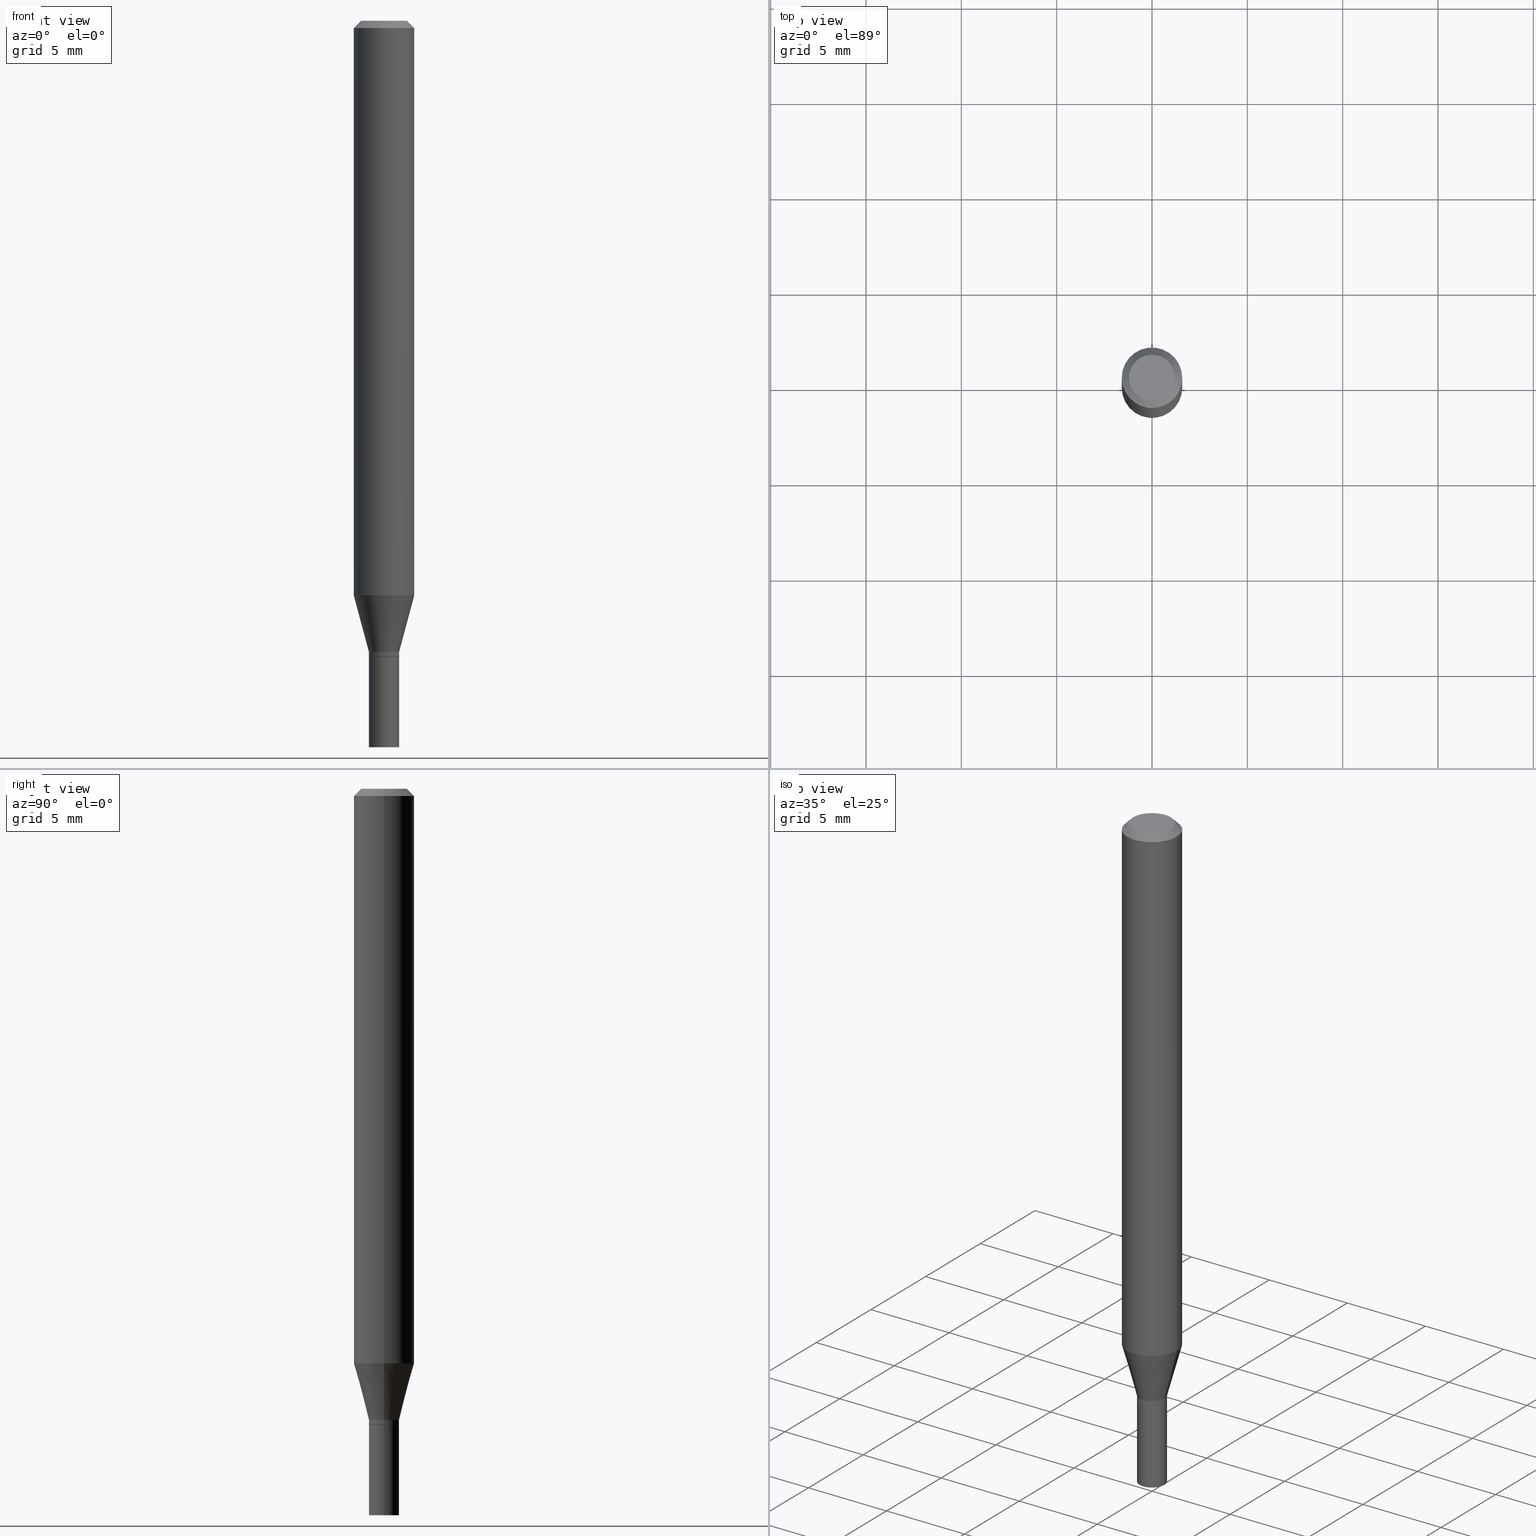
[diagram: canonical four-view strip — front | top / right | iso, engineering-drawing reading convention]
A machine part, canonical four-view strip (front | top / right | iso — engineering-drawing reading convention). The complete STEP part file that produces these views, byte-faithful:
ISO-10303-21;
HEADER;
FILE_DESCRIPTION (( 'STEP AP203' ),
    '1' );
FILE_NAME ('35473.STEP',
    '2024-03-13T16:41:10',
    ( '' ),
    ( '' ),
    'SwSTEP 2.0',
    'SolidWorks 2023',
    '' );
FILE_SCHEMA (( 'CONFIG_CONTROL_DESIGN' ));
ENDSEC;

DATA;
#1 = VERTEX_POINT ( 'NONE', #331 ) ;
#2 = DIRECTION ( 'NONE',  ( -2.445468806185136597E-29, 3.491481338843145583E-15, 1.000000000000000000 ) ) ;
#3 = DIRECTION ( 'NONE',  ( 1.000000000000000000, -6.982962677686261189E-15, 0.000000000000000000 ) ) ;
#4 = AXIS2_PLACEMENT_3D ( 'NONE', #119, #405, #188 ) ;
#5 = AXIS2_PLACEMENT_3D ( 'NONE', #245, #161, #390 ) ;
#6 = ORIENTED_EDGE ( 'NONE', *, *, #456, .T. ) ;
#7 = CALENDAR_DATE ( 2024, 13, 3 ) ;
#8 = VERTEX_POINT ( 'NONE', #114 ) ;
#9 = SHAPE_DEFINITION_REPRESENTATION ( #292, #412 ) ;
#10 = DIRECTION ( 'NONE',  ( -2.445468806185136597E-29, 3.491481338843145583E-15, 1.000000000000000000 ) ) ;
#11 = SECURITY_CLASSIFICATION_LEVEL ( 'unclassified' ) ;
#12 = AXIS2_PLACEMENT_3D ( 'NONE', #229, #10, #403 ) ;
#13 = CONICAL_SURFACE ( 'NONE', #449, 0.03075000000000000649, 0.7853981633974739252 ) ;
#14 = CARTESIAN_POINT ( 'NONE',  ( -0.03125000000000000694, -4.688723898157853868E-15, -1.500000000000000222 ) ) ;
#15 = CIRCLE ( 'NONE', #345, 0.03124999999999994102 ) ;
#16 = ORGANIZATION ( 'UNSPECIFIED', 'UNSPECIFIED', '' ) ;
#17 = ORIENTED_EDGE ( 'NONE', *, *, #110, .F. ) ;
#18 = CARTESIAN_POINT ( 'NONE',  ( 2.901239172177741338E-29, -4.142200629817580672E-15, -1.186373412263472593 ) ) ;
#19 = DIRECTION ( 'NONE',  ( -2.445468806185136597E-29, 3.491481338843145583E-15, 1.000000000000000000 ) ) ;
#20 = DESIGN_CONTEXT ( 'detailed design', #184, 'design' ) ;
#21 = CARTESIAN_POINT ( 'NONE',  ( 0.03075000000000000649, -4.799041100239904215E-15, -1.313000000000000167 ) ) ;
#22 = AXIS2_PLACEMENT_3D ( 'NONE', #38, #363, #3 ) ;
#23 = ORIENTED_EDGE ( 'NONE', *, *, #236, .T. ) ;
#24 = DIRECTION ( 'NONE',  ( -0.7071067811865656694, 7.493145998870420424E-15, 0.7071067811865294761 ) ) ;
#25 = DIRECTION ( 'NONE',  ( 1.000000000000000000, -6.982962677686261189E-15, 0.000000000000000000 ) ) ;
#26 = LINE ( 'NONE', #61, #232 ) ;
#27 = ADVANCED_FACE ( 'NONE', ( #118 ), #222, .T. ) ;
#28 = ADVANCED_FACE ( 'NONE', ( #404 ), #213, .T. ) ;
#29 = DIRECTION ( 'NONE',  ( -2.445468806185136597E-29, 3.491481338843145583E-15, 1.000000000000000000 ) ) ;
#30 = CARTESIAN_POINT ( 'NONE',  ( 3.210900542521084585E-29, -4.584314997901050598E-15, -1.313000000000000167 ) ) ;
#31 = ORIENTED_EDGE ( 'NONE', *, *, #169, .T. ) ;
#32 = CARTESIAN_POINT ( 'NONE',  ( 3.209677808117992344E-29, -4.582569257231629095E-15, -1.312500000000000222 ) ) ;
#33 = DIRECTION ( 'NONE',  ( -1.000000000000000000, 6.982962677686265922E-15, -4.876176775795935793E-29 ) ) ;
#34 = DIRECTION ( 'NONE',  ( -2.445468806185136597E-29, 3.491481338843145583E-15, 1.000000000000000000 ) ) ;
#35 = AXIS2_PLACEMENT_3D ( 'NONE', #426, #80, #196 ) ;
#36 = ORIENTED_EDGE ( 'NONE', *, *, #159, .F. ) ;
#37 = AXIS2_PLACEMENT_3D ( 'NONE', #424, #2, #106 ) ;
#38 = CARTESIAN_POINT ( 'NONE',  ( 3.668203209277704895E-29, -5.237222008264718177E-15, -1.500000000000000222 ) ) ;
#39 = ORIENTED_EDGE ( 'NONE', *, *, #361, .T. ) ;
#40 = APPROVAL_ROLE ( '' ) ;
#41 = PERSON_AND_ORGANIZATION ( #445, #16 ) ;
#42 = EDGE_CURVE ( 'NONE', #8, #105, #427, .T. ) ;
#43 = ORIENTED_EDGE ( 'NONE', *, *, #306, .T. ) ;
#44 = APPROVAL_DATE_TIME ( #228, #247 ) ;
#45 = FACE_OUTER_BOUND ( 'NONE', #172, .T. ) ;
#46 = CIRCLE ( 'NONE', #51, 0.03125000000000000694 ) ;
#47 = LOCAL_TIME ( 12, 41, 10.00000000000000000, #73 ) ;
#48 = PLANE ( 'NONE',  #56 ) ;
#49 = DIRECTION ( 'NONE',  ( -2.445468806185136597E-29, 3.491481338843145583E-15, 1.000000000000000000 ) ) ;
#50 = ORIENTED_EDGE ( 'NONE', *, *, #318, .T. ) ;
#51 = AXIS2_PLACEMENT_3D ( 'NONE', #69, #422, #209 ) ;
#52 = FACE_OUTER_BOUND ( 'NONE', #113, .T. ) ;
#53 = ADVANCED_FACE ( 'NONE', ( #233 ), #303, .T. ) ;
#54 = DIRECTION ( 'NONE',  ( -2.445468806185136877E-29, 3.491481338843145188E-15, 1.000000000000000000 ) ) ;
#55 = ORIENTED_EDGE ( 'NONE', *, *, #438, .T. ) ;
#56 = AXIS2_PLACEMENT_3D ( 'NONE', #333, #402, #189 ) ;
#57 = EDGE_CURVE ( 'NONE', #65, #1, #301, .T. ) ;
#58 = CIRCLE ( 'NONE', #89, 0.03124999999999994102 ) ;
#59 = CARTESIAN_POINT ( 'NONE',  ( 3.668203209277705088E-31, -5.237222008264718399E-17, -0.01499999999999999944 ) ) ;
#60 = DIRECTION ( 'NONE',  ( 0.000000000000000000, 0.000000000000000000, 1.000000000000000000 ) ) ;
#61 = CARTESIAN_POINT ( 'NONE',  ( 0.06250000000000000000, -4.811533449433679005E-16, -0.01499999999999999944 ) ) ;
#62 = ORIENTED_EDGE ( 'NONE', *, *, #394, .F. ) ;
#63 = PRODUCT_RELATED_PRODUCT_CATEGORY ( 'detail', '', ( #215 ) ) ;
#64 = PERSON_AND_ORGANIZATION ( #445, #16 ) ;
#65 = VERTEX_POINT ( 'NONE', #14 ) ;
#66 = EDGE_CURVE ( 'NONE', #168, #235, #440, .T. ) ;
#67 = DIRECTION ( 'NONE',  ( 1.000000000000000000, -6.982962677686266711E-15, 4.876176775795935793E-29 ) ) ;
#68 = VECTOR ( 'NONE', #273, 39.37007874015747433 ) ;
#69 = CARTESIAN_POINT ( 'NONE',  ( 3.210900542521084585E-29, -4.584314997901050598E-15, -1.313000000000000167 ) ) ;
#70 = LINE ( 'NONE', #325, #429 ) ;
#71 = PERSON_AND_ORGANIZATION ( #445, #16 ) ;
#72 = FACE_OUTER_BOUND ( 'NONE', #165, .T. ) ;
#73 = COORDINATED_UNIVERSAL_TIME_OFFSET ( 5, 0, .BEHIND. ) ;
#74 = EDGE_CURVE ( 'NONE', #147, #101, #267, .T. ) ;
#75 = AXIS2_PLACEMENT_3D ( 'NONE', #128, #88, #334 ) ;
#76 = APPROVAL_PERSON_ORGANIZATION ( #295, #379, #435 ) ;
#77 = ORIENTED_EDGE ( 'NONE', *, *, #198, .F. ) ;
#78 = DATE_AND_TIME ( #180, #152 ) ;
#79 = CC_DESIGN_PERSON_AND_ORGANIZATION_ASSIGNMENT ( #219, #182, ( #332 ) ) ;
#80 = DIRECTION ( 'NONE',  ( -2.445468806185136597E-29, 3.491481338843145583E-15, 1.000000000000000000 ) ) ;
#81 = FACE_OUTER_BOUND ( 'NONE', #253, .T. ) ;
#82 = AXIS2_PLACEMENT_3D ( 'NONE', #171, #276, #25 ) ;
#83 = DIRECTION ( 'NONE',  ( -2.445468806185136877E-29, 3.491481338843145188E-15, 1.000000000000000000 ) ) ;
#84 = DIRECTION ( 'NONE',  ( 1.000000000000000000, -6.982962677686275388E-15, 0.000000000000000000 ) ) ;
#85 = DIRECTION ( 'NONE',  ( 0.7071067811865656694, -2.468850131082446387E-15, 0.7071067811865294761 ) ) ;
#86 = ORIENTED_EDGE ( 'NONE', *, *, #328, .T. ) ;
#87 = DIRECTION ( 'NONE',  ( 1.000000000000000000, -6.982962677686267499E-15, 4.852736867747366768E-29 ) ) ;
#88 = DIRECTION ( 'NONE',  ( -2.438088387897960049E-29, 3.491481338843145188E-15, 1.000000000000000000 ) ) ;
#89 = AXIS2_PLACEMENT_3D ( 'NONE', #99, #97, #421 ) ;
#90 = FACE_OUTER_BOUND ( 'NONE', #313, .T. ) ;
#91 = ORIENTED_EDGE ( 'NONE', *, *, #361, .F. ) ;
#92 = APPLICATION_CONTEXT ( 'configuration controlled 3d designs of mechanical parts and assemblies' ) ;
#93 = DIRECTION ( 'NONE',  ( 1.000000000000000000, -6.982962677686261189E-15, 0.000000000000000000 ) ) ;
#94 = ORIENTED_EDGE ( 'NONE', *, *, #367, .T. ) ;
#95 = AXIS2_PLACEMENT_3D ( 'NONE', #342, #197, #340 ) ;
#96 = CIRCLE ( 'NONE', #22, 0.03125000000000000694 ) ;
#97 = DIRECTION ( 'NONE',  ( -2.445468806185136597E-29, 3.491481338843145583E-15, 1.000000000000000000 ) ) ;
#98 = ORIENTED_EDGE ( 'NONE', *, *, #283, .F. ) ;
#99 = CARTESIAN_POINT ( 'NONE',  ( 3.186445854459233039E-29, -4.549400184512618949E-15, -1.302999999999999936 ) ) ;
#100 = ORIENTED_EDGE ( 'NONE', *, *, #66, .T. ) ;
#101 = VERTEX_POINT ( 'NONE', #336 ) ;
#102 = COORDINATED_UNIVERSAL_TIME_OFFSET ( 5, 0, .BEHIND. ) ;
#103 = CARTESIAN_POINT ( 'NONE',  ( -0.06250000000000000000, 4.440892098500626162E-16, -3.074334431409316114E-30 ) ) ;
#104 = AXIS2_PLACEMENT_3D ( 'NONE', #59, #29, #309 ) ;
#105 = VERTEX_POINT ( 'NONE', #238 ) ;
#106 = DIRECTION ( 'NONE',  ( 1.000000000000000000, -6.982962677686275388E-15, 0.000000000000000000 ) ) ;
#107 = APPROVAL_STATUS ( 'not_yet_approved' ) ;
#108 = DIRECTION ( 'NONE',  ( 1.000000000000000000, -6.982962677686267499E-15, 4.876176775795935793E-29 ) ) ;
#109 = EDGE_LOOP ( 'NONE', ( #164, #353, #310, #210 ) ) ;
#110 = EDGE_CURVE ( 'NONE', #432, #321, #158, .T. ) ;
#111 = EDGE_CURVE ( 'NONE', #291, #321, #15, .T. ) ;
#112 = APPROVAL_DATE_TIME ( #365, #287 ) ;
#113 = EDGE_LOOP ( 'NONE', ( #411, #224 ) ) ;
#114 = CARTESIAN_POINT ( 'NONE',  ( -0.04749999999999999362, 3.578768372314206562E-16, -2.410986470890853225E-16 ) ) ;
#115 = CARTESIAN_POINT ( 'NONE',  ( 0.03125000000000000694, -5.455439591942414011E-15, -1.500000000000000222 ) ) ;
#116 = ORIENTED_EDGE ( 'NONE', *, *, #372, .T. ) ;
#117 = CC_DESIGN_PERSON_AND_ORGANIZATION_ASSIGNMENT ( #348, #388, ( #215 ) ) ;
#118 = FACE_OUTER_BOUND ( 'NONE', #418, .T. ) ;
#119 = CARTESIAN_POINT ( 'NONE',  ( 0.000000000000000000, 0.000000000000000000, 0.000000000000000000 ) ) ;
#120 = CARTESIAN_POINT ( 'NONE',  ( 0.03125000000000000694, -2.182175836776959087E-16, 1.523805242436230286E-30 ) ) ;
#121 = DIRECTION ( 'NONE',  ( 1.000000000000000000, -6.982962677686262766E-15, 0.000000000000000000 ) ) ;
#122 = CLOSED_SHELL ( 'NONE', ( #126, #341, #53, #155, #124, #258, #428, #27, #420, #156, #241, #216 ) ) ;
#123 = PRODUCT_DEFINITION_FORMATION_WITH_SPECIFIED_SOURCE ( 'ANY', '', #215, .NOT_KNOWN. ) ;
#124 = ADVANCED_FACE ( 'NONE', ( #199 ), #335, .T. ) ;
#125 = APPLICATION_PROTOCOL_DEFINITION ( 'international standard', 'config_control_design', 1994, #92 ) ;
#126 = ADVANCED_FACE ( 'NONE', ( #90 ), #343, .T. ) ;
#127 = CARTESIAN_POINT ( 'NONE',  ( 0.06250000000000000000, -4.364351673553916694E-16, 3.047610484872459871E-30 ) ) ;
#128 = CARTESIAN_POINT ( 'NONE',  ( 3.576687321579069994E-29, -5.368277968210015545E-15, -1.500000000000000222 ) ) ;
#129 = VECTOR ( 'NONE', #178, 39.37007874015748854 ) ;
#130 = FACE_OUTER_BOUND ( 'NONE', #383, .T. ) ;
#131 = CARTESIAN_POINT ( 'NONE',  ( 0.06250000000000000000, -4.578635797172973130E-15, -1.186373412263472593 ) ) ;
#132 = DIRECTION ( 'NONE',  ( 0.7071067811865531239, -7.319954787623273400E-15, -0.7071067811865416886 ) ) ;
#133 = ORIENTED_EDGE ( 'NONE', *, *, #57, .F. ) ;
#134 = AXIS2_PLACEMENT_3D ( 'NONE', #296, #441, #84 ) ;
#135 = CIRCLE ( 'NONE', #104, 0.06250000000000000000 ) ;
#136 = PLANE ( 'NONE',  #354 ) ;
#137 = DIRECTION ( 'NONE',  ( -2.445468806185136597E-29, 3.491481338843145583E-15, 1.000000000000000000 ) ) ;
#138 = DIRECTION ( 'NONE',  ( 2.438088387897960049E-29, -3.491481338843145188E-15, -1.000000000000000000 ) ) ;
#139 = ORIENTED_EDGE ( 'NONE', *, *, #111, .T. ) ;
#140 = ORIENTED_EDGE ( 'NONE', *, *, #236, .F. ) ;
#141 = EDGE_CURVE ( 'NONE', #389, #434, #444, .T. ) ;
#142 = APPLICATION_PROTOCOL_DEFINITION ( 'international standard', 'config_control_design', 1994, #184 ) ;
#143 = DIRECTION ( 'NONE',  ( -2.445468806185136597E-29, 3.491481338843145583E-15, 1.000000000000000000 ) ) ;
#144 = ORIENTED_EDGE ( 'NONE', *, *, #456, .F. ) ;
#145 = AXIS2_PLACEMENT_3D ( 'NONE', #261, #466, #323 ) ;
#146 = CIRCLE ( 'NONE', #288, 0.06250000000000000000 ) ;
#147 = VERTEX_POINT ( 'NONE', #21 ) ;
#148 = CALENDAR_DATE ( 2024, 13, 3 ) ;
#149 = DATE_TIME_ROLE ( 'classification_date' ) ;
#150 = CYLINDRICAL_SURFACE ( 'NONE', #4, 0.06250000000000000000 ) ;
#151 = ADVANCED_FACE ( 'NONE', ( #52 ), #416, .F. ) ;
#152 = LOCAL_TIME ( 12, 41, 10.00000000000000000, #221 ) ;
#153 = ORIENTED_EDGE ( 'NONE', *, *, #306, .F. ) ;
#154 = DIRECTION ( 'NONE',  ( 2.445468806185136597E-29, -3.491481338843145583E-15, -1.000000000000000000 ) ) ;
#155 = ADVANCED_FACE ( 'NONE', ( #230 ), #150, .T. ) ;
#156 = ADVANCED_FACE ( 'NONE', ( #81 ), #48, .F. ) ;
#157 = ORIENTED_EDGE ( 'NONE', *, *, #394, .T. ) ;
#158 = LINE ( 'NONE', #378, #186 ) ;
#159 = EDGE_CURVE ( 'NONE', #147, #359, #211, .T. ) ;
#160 = CONICAL_SURFACE ( 'NONE', #272, 0.03124999999999994102, 0.2617993877991501295 ) ;
#161 = DIRECTION ( 'NONE',  ( -2.445468806185136597E-29, 3.491481338843145583E-15, 1.000000000000000000 ) ) ;
#162 = MECHANICAL_CONTEXT ( 'NONE', #92, 'mechanical' ) ;
#163 = DIRECTION ( 'NONE',  ( 1.000000000000000000, -6.982962677686275388E-15, 0.000000000000000000 ) ) ;
#164 = ORIENTED_EDGE ( 'NONE', *, *, #393, .T. ) ;
#165 = EDGE_LOOP ( 'NONE', ( #133, #50, #100, #77 ) ) ;
#166 = CARTESIAN_POINT ( 'NONE',  ( 0.03124999999999993408, -2.182175836776953910E-16, 1.523805242436226782E-30 ) ) ;
#167 = FACE_OUTER_BOUND ( 'NONE', #260, .T. ) ;
#168 = VERTEX_POINT ( 'NONE', #115 ) ;
#169 = EDGE_CURVE ( 'NONE', #436, #389, #437, .T. ) ;
#170 = CIRCLE ( 'NONE', #5, 0.03075000000000000649 ) ;
#171 = CARTESIAN_POINT ( 'NONE',  ( 3.668203209277704895E-29, -5.237222008264718177E-15, -1.500000000000000222 ) ) ;
#172 = EDGE_LOOP ( 'NONE', ( #387, #237 ) ) ;
#173 =( NAMED_UNIT ( * ) SI_UNIT ( $, .STERADIAN. ) SOLID_ANGLE_UNIT ( ) );
#174 = PERSON_AND_ORGANIZATION_ROLE ( 'classification_officer' ) ;
#175 = CC_DESIGN_PERSON_AND_ORGANIZATION_ASSIGNMENT ( #396, #330, ( #123 ) ) ;
#176 = MANIFOLD_SOLID_BREP ( 'Body-Move/Copy2[2]', #122 ) ;
#177 = LINE ( 'NONE', #103, #316 ) ;
#178 = DIRECTION ( 'NONE',  ( -0.7071067811865531239, 2.468850131082316225E-15, -0.7071067811865416886 ) ) ;
#179 = ORIENTED_EDGE ( 'NONE', *, *, #367, .F. ) ;
#180 = CALENDAR_DATE ( 2024, 13, 3 ) ;
#181 = VECTOR ( 'NONE', #24, 39.37007874015748143 ) ;
#182 = PERSON_AND_ORGANIZATION_ROLE ( 'creator' ) ;
#183 = MANIFOLD_SOLID_BREP ( 'Body-Move/Copy2[1]', #407 ) ;
#184 = APPLICATION_CONTEXT ( 'configuration controlled 3d designs of mechanical parts and assemblies' ) ;
#185 = CARTESIAN_POINT ( 'NONE',  ( 0.03125000000000000694, -4.802532581578746433E-15, -1.313000000000000167 ) ) ;
#186 = VECTOR ( 'NONE', #54, 39.37007874015748143 ) ;
#187 = AXIS2_PLACEMENT_3D ( 'NONE', #395, #415, #87 ) ;
#188 = DIRECTION ( 'NONE',  ( 1.000000000000000000, -6.982962677686266711E-15, 4.876176775795935793E-29 ) ) ;
#189 = DIRECTION ( 'NONE',  ( 1.000000000000000000, -6.982962677686265922E-15, 4.876176775795935793E-29 ) ) ;
#190 = EDGE_CURVE ( 'NONE', #432, #101, #194, .T. ) ;
#191 = ADVANCED_FACE ( 'NONE', ( #45 ), #220, .F. ) ;
#192 = CARTESIAN_POINT ( 'NONE',  ( -0.03125000000000000694, 2.220446049250313574E-16, -1.537167215704658582E-30 ) ) ;
#193 = ORIENTED_EDGE ( 'NONE', *, *, #141, .F. ) ;
#194 = CIRCLE ( 'NONE', #459, 0.03124999999999993061 ) ;
#195 = APPROVAL_PERSON_ORGANIZATION ( #41, #287, #40 ) ;
#196 = DIRECTION ( 'NONE',  ( 1.000000000000000000, -6.982962677686267499E-15, 4.852736867747366768E-29 ) ) ;
#197 = DIRECTION ( 'NONE',  ( -2.445468806185136597E-29, 3.491481338843145583E-15, 1.000000000000000000 ) ) ;
#198 = EDGE_CURVE ( 'NONE', #1, #235, #46, .T. ) ;
#199 = FACE_OUTER_BOUND ( 'NONE', #446, .T. ) ;
#200 = VECTOR ( 'NONE', #439, 39.37007874015748143 ) ;
#201 = CARTESIAN_POINT ( 'NONE',  ( -0.03075000000000000649, -4.365823106654820189E-15, -1.313000000000000167 ) ) ;
#202 = APPROVAL_PERSON_ORGANIZATION ( #64, #247, #368 ) ;
#203 = FACE_OUTER_BOUND ( 'NONE', #281, .T. ) ;
#204 = DIRECTION ( 'NONE',  ( -2.445468806185136597E-29, 3.491481338843145583E-15, 1.000000000000000000 ) ) ;
#205 = LINE ( 'NONE', #166, #250 ) ;
#206 = EDGE_CURVE ( 'NONE', #436, #430, #177, .T. ) ;
#207 = ORIENTED_EDGE ( 'NONE', *, *, #408, .F. ) ;
#208 = DIRECTION ( 'NONE',  ( -2.445468806185136877E-29, 3.491481338843145188E-15, 1.000000000000000000 ) ) ;
#209 = DIRECTION ( 'NONE',  ( 1.000000000000000000, -6.982962677686261189E-15, 0.000000000000000000 ) ) ;
#210 = ORIENTED_EDGE ( 'NONE', *, *, #66, .F. ) ;
#211 = CIRCLE ( 'NONE', #134, 0.03075000000000000649 ) ;
#212 = CARTESIAN_POINT ( 'NONE',  ( -0.03124999999999994102, -4.327355579587587641E-15, -1.302999999999999936 ) ) ;
#213 = CYLINDRICAL_SURFACE ( 'NONE', #264, 0.03125000000000000694 ) ;
#214 = EDGE_LOOP ( 'NONE', ( #17, #350, #55, #465 ) ) ;
#215 = PRODUCT ( '35473', '35473', '', ( #162 ) ) ;
#216 = ADVANCED_FACE ( 'NONE', ( #352 ), #362, .T. ) ;
#217 = COORDINATED_UNIVERSAL_TIME_OFFSET ( 5, 0, .BEHIND. ) ;
#218 = EDGE_LOOP ( 'NONE', ( #244, #450, #357, #153 ) ) ;
#219 = PERSON_AND_ORGANIZATION ( #445, #16 ) ;
#220 = PLANE ( 'NONE',  #257 ) ;
#221 = COORDINATED_UNIVERSAL_TIME_OFFSET ( 5, 0, .BEHIND. ) ;
#222 = CONICAL_SURFACE ( 'NONE', #145, 0.06250000000000000000, 0.7853981633974563836 ) ;
#223 =( GEOMETRIC_REPRESENTATION_CONTEXT ( 3 ) GLOBAL_UNCERTAINTY_ASSIGNED_CONTEXT ( ( #370 ) ) GLOBAL_UNIT_ASSIGNED_CONTEXT ( ( #355, #319, #173 ) ) REPRESENTATION_CONTEXT ( 'NONE', 'WORKASPACE' ) );
#224 = ORIENTED_EDGE ( 'NONE', *, *, #318, .F. ) ;
#225 = DATE_TIME_ROLE ( 'creation_date' ) ;
#226 = ADVANCED_FACE ( 'NONE', ( #72 ), #454, .T. ) ;
#227 = CARTESIAN_POINT ( 'NONE',  ( 3.209677808117992344E-29, -4.582569257231629095E-15, -1.312500000000000222 ) ) ;
#228 = DATE_AND_TIME ( #326, #47 ) ;
#229 = CARTESIAN_POINT ( 'NONE',  ( 0.000000000000000000, 0.000000000000000000, 0.000000000000000000 ) ) ;
#230 = FACE_OUTER_BOUND ( 'NONE', #455, .T. ) ;
#231 = AXIS2_PLACEMENT_3D ( 'NONE', #371, #49, #121 ) ;
#232 = VECTOR ( 'NONE', #132, 39.37007874015748854 ) ;
#233 = FACE_OUTER_BOUND ( 'NONE', #218, .T. ) ;
#234 = CARTESIAN_POINT ( 'NONE',  ( 0.000000000000000000, 0.000000000000000000, 0.000000000000000000 ) ) ;
#235 = VERTEX_POINT ( 'NONE', #185 ) ;
#236 = EDGE_CURVE ( 'NONE', #430, #434, #374, .T. ) ;
#237 = ORIENTED_EDGE ( 'NONE', *, *, #198, .T. ) ;
#238 = CARTESIAN_POINT ( 'NONE',  ( 0.04749999999999999362, -4.035134999187582567E-16, -2.410986470890803429E-16 ) ) ;
#239 = CARTESIAN_POINT ( 'NONE',  ( -0.06250000000000000000, -1.653197215100051457E-15, -0.01499999999999999944 ) ) ;
#240 = CC_DESIGN_SECURITY_CLASSIFICATION ( #400, ( #123 ) ) ;
#241 = ADVANCED_FACE ( 'NONE', ( #419 ), #13, .T. ) ;
#242 = DIRECTION ( 'NONE',  ( -2.445468806185136877E-29, 3.491481338843145188E-15, 1.000000000000000000 ) ) ;
#243 = CARTESIAN_POINT ( 'NONE',  ( 3.316907271900976096E-16, 0.04749999999999999362, -2.863946871395908498E-16 ) ) ;
#244 = ORIENTED_EDGE ( 'NONE', *, *, #344, .F. ) ;
#245 = CARTESIAN_POINT ( 'NONE',  ( 3.210900542521084585E-29, -4.584314997901050598E-15, -1.313000000000000167 ) ) ;
#246 = CARTESIAN_POINT ( 'NONE',  ( 2.182175836777279808E-16, 0.03124999999999542380, -1.313000000000000167 ) ) ;
#247 = APPROVAL ( #289, 'UNSPECIFIED' ) ;
#248 = VECTOR ( 'NONE', #307, 39.37007874015748143 ) ;
#249 = LINE ( 'NONE', #201, #181 ) ;
#250 = VECTOR ( 'NONE', #208, 39.37007874015748143 ) ;
#251 = PERSON_AND_ORGANIZATION_ROLE ( 'creator' ) ;
#252 = CARTESIAN_POINT ( 'NONE',  ( -0.06250000000000000000, 3.840629472727444916E-16, -0.01499999999999999944 ) ) ;
#253 = EDGE_LOOP ( 'NONE', ( #36, #62 ) ) ;
#254 = CALENDAR_DATE ( 2024, 13, 3 ) ;
#255 = ORIENTED_EDGE ( 'NONE', *, *, #206, .T. ) ;
#256 = ORIENTED_EDGE ( 'NONE', *, *, #159, .T. ) ;
#257 = AXIS2_PLACEMENT_3D ( 'NONE', #246, #138, #464 ) ;
#258 = ADVANCED_FACE ( 'NONE', ( #167 ), #160, .T. ) ;
#259 = CIRCLE ( 'NONE', #187, 0.04749999999999999362 ) ;
#260 = EDGE_LOOP ( 'NONE', ( #144, #462, #86, #284 ) ) ;
#261 = CARTESIAN_POINT ( 'NONE',  ( 3.668203209277705088E-31, -5.237222008264718399E-17, -0.01499999999999999944 ) ) ;
#262 = CC_DESIGN_DATE_AND_TIME_ASSIGNMENT ( #360, #225, ( #332 ) ) ;
#263 = DIMENSIONAL_EXPONENTS ( 1.000000000000000000, 0.000000000000000000, 0.000000000000000000, 0.000000000000000000, 0.000000000000000000, 0.000000000000000000, 0.000000000000000000 ) ;
#264 = AXIS2_PLACEMENT_3D ( 'NONE', #356, #143, #285 ) ;
#265 = CONICAL_SURFACE ( 'NONE', #37, 0.03075000000000000649, 0.7853981633974739252 ) ;
#266 = DIRECTION ( 'NONE',  ( 1.000000000000000000, -6.982962677686278543E-15, 0.000000000000000000 ) ) ;
#267 = LINE ( 'NONE', #410, #382 ) ;
#268 = DIRECTION ( 'NONE',  ( 1.000000000000000000, -6.982962677686276177E-15, 0.000000000000000000 ) ) ;
#269 = CARTESIAN_POINT ( 'NONE',  ( 3.668203209277705088E-31, -5.237222008264718399E-17, -0.01499999999999999944 ) ) ;
#270 = EDGE_LOOP ( 'NONE', ( #179, #157, #294, #399 ) ) ;
#271 = CARTESIAN_POINT ( 'NONE',  ( 3.186445854459233039E-29, -4.549400184512618949E-15, -1.302999999999999936 ) ) ;
#272 = AXIS2_PLACEMENT_3D ( 'NONE', #312, #458, #315 ) ;
#273 = DIRECTION ( 'NONE',  ( -0.2588190451025214611, 5.211531920934551042E-15, 0.9659258262890682012 ) ) ;
#274 = ORIENTED_EDGE ( 'NONE', *, *, #206, .F. ) ;
#275 = EDGE_CURVE ( 'NONE', #235, #1, #304, .T. ) ;
#276 = DIRECTION ( 'NONE',  ( -2.445468806185136597E-29, 3.491481338843145583E-15, 1.000000000000000000 ) ) ;
#277 = CARTESIAN_POINT ( 'NONE',  ( 0.03124999999999994102, -4.767617768190314784E-15, -1.302999999999999936 ) ) ;
#278 = ORIENTED_EDGE ( 'NONE', *, *, #438, .F. ) ;
#279 = DIRECTION ( 'NONE',  ( -2.445468806185136597E-29, 3.491481338843145583E-15, 1.000000000000000000 ) ) ;
#280 = CC_DESIGN_APPROVAL ( #247, ( #332 ) ) ;
#281 = EDGE_LOOP ( 'NONE', ( #286, #347 ) ) ;
#282 =( LENGTH_UNIT ( ) NAMED_UNIT ( * ) SI_UNIT ( $, .METRE. ) );
#283 = EDGE_CURVE ( 'NONE', #105, #434, #26, .T. ) ;
#284 = ORIENTED_EDGE ( 'NONE', *, *, #169, .F. ) ;
#285 = DIRECTION ( 'NONE',  ( 1.000000000000000000, -6.982962677686267499E-15, 4.876176775795935793E-29 ) ) ;
#286 = ORIENTED_EDGE ( 'NONE', *, *, #42, .T. ) ;
#287 = APPROVAL ( #398, 'UNSPECIFIED' ) ;
#288 = AXIS2_PLACEMENT_3D ( 'NONE', #18, #279, #401 ) ;
#289 = APPROVAL_STATUS ( 'not_yet_approved' ) ;
#290 = CARTESIAN_POINT ( 'NONE',  ( -0.03124999999999994102, -4.012733499777553243E-15, -1.302999999999999936 ) ) ;
#291 = VERTEX_POINT ( 'NONE', #277 ) ;
#292 = PRODUCT_DEFINITION_SHAPE ( 'NONE', 'NONE',  #332 ) ;
#293 = DATE_AND_TIME ( #7, #308 ) ;
#294 = ORIENTED_EDGE ( 'NONE', *, *, #74, .T. ) ;
#295 = PERSON_AND_ORGANIZATION ( #445, #16 ) ;
#296 = CARTESIAN_POINT ( 'NONE',  ( 3.210900542521084585E-29, -4.584314997901050598E-15, -1.313000000000000167 ) ) ;
#297 = AXIS2_PLACEMENT_3D ( 'NONE', #358, #34, #108 ) ;
#298 = CIRCLE ( 'NONE', #82, 0.03125000000000000694 ) ;
#299 = ORIENTED_EDGE ( 'NONE', *, *, #141, .T. ) ;
#300 = CC_DESIGN_PERSON_AND_ORGANIZATION_ASSIGNMENT ( #431, #251, ( #123 ) ) ;
#301 = LINE ( 'NONE', #192, #200 ) ;
#302 = CC_DESIGN_PERSON_AND_ORGANIZATION_ASSIGNMENT ( #71, #174, ( #400 ) ) ;
#303 = CONICAL_SURFACE ( 'NONE', #391, 0.06250000000000000000, 0.7853981633974563836 ) ;
#304 = CIRCLE ( 'NONE', #392, 0.03125000000000000694 ) ;
#305 = DIRECTION ( 'NONE',  ( -2.445468806185136597E-29, 3.491481338843145583E-15, 1.000000000000000000 ) ) ;
#306 = EDGE_CURVE ( 'NONE', #8, #430, #327, .T. ) ;
#307 = DIRECTION ( 'NONE',  ( -2.445468806185136877E-29, 3.491481338843145188E-15, 1.000000000000000000 ) ) ;
#308 = LOCAL_TIME ( 12, 41, 10.00000000000000000, #329 ) ;
#309 = DIRECTION ( 'NONE',  ( 1.000000000000000000, -6.982962677686266711E-15, 0.000000000000000000 ) ) ;
#310 = ORIENTED_EDGE ( 'NONE', *, *, #275, .F. ) ;
#311 = DIRECTION ( 'NONE',  ( 1.000000000000000000, 0.000000000000000000, 0.000000000000000000 ) ) ;
#312 = CARTESIAN_POINT ( 'NONE',  ( 3.186445854459233039E-29, -4.549400184512618949E-15, -1.302999999999999936 ) ) ;
#313 = EDGE_LOOP ( 'NONE', ( #116, #457, #397, #278 ) ) ;
#314 = ORIENTED_EDGE ( 'NONE', *, *, #328, .F. ) ;
#315 = DIRECTION ( 'NONE',  ( 1.000000000000000000, -6.982962677686276177E-15, 0.000000000000000000 ) ) ;
#316 = VECTOR ( 'NONE', #242, 39.37007874015748143 ) ;
#317 = AXIS2_PLACEMENT_3D ( 'NONE', #417, #423, #67 ) ;
#318 = EDGE_CURVE ( 'NONE', #65, #168, #96, .T. ) ;
#319 =( NAMED_UNIT ( * ) PLANE_ANGLE_UNIT ( ) SI_UNIT ( $, .RADIAN. ) );
#320 = CYLINDRICAL_SURFACE ( 'NONE', #317, 0.06250000000000000000 ) ;
#321 = VERTEX_POINT ( 'NONE', #290 ) ;
#322 = FACE_OUTER_BOUND ( 'NONE', #460, .T. ) ;
#323 = DIRECTION ( 'NONE',  ( -1.000000000000000000, 6.982962677686266711E-15, 0.000000000000000000 ) ) ;
#324 = CIRCLE ( 'NONE', #364, 0.03124999999999993061 ) ;
#325 = CARTESIAN_POINT ( 'NONE',  ( 0.03124999999999994102, -4.767617768190314784E-15, -1.302999999999999936 ) ) ;
#326 = CALENDAR_DATE ( 2024, 13, 3 ) ;
#327 = LINE ( 'NONE', #252, #129 ) ;
#328 = EDGE_CURVE ( 'NONE', #291, #389, #70, .T. ) ;
#329 = COORDINATED_UNIVERSAL_TIME_OFFSET ( 5, 0, .BEHIND. ) ;
#330 = PERSON_AND_ORGANIZATION_ROLE ( 'design_supplier' ) ;
#331 = CARTESIAN_POINT ( 'NONE',  ( -0.03125000000000000694, -4.688723898157853868E-15, -1.313000000000000167 ) ) ;
#332 = PRODUCT_DEFINITION ( 'UNKNOWN', '', #123, #20 ) ;
#333 = CARTESIAN_POINT ( 'NONE',  ( 3.210900542521084585E-29, -4.584314997901050598E-15, -1.313000000000000167 ) ) ;
#334 = DIRECTION ( 'NONE',  ( 1.000000000000000000, -6.982962677686265922E-15, 4.876176775795935793E-29 ) ) ;
#335 = CONICAL_SURFACE ( 'NONE', #442, 0.03124999999999994102, 0.2617993877991501295 ) ;
#336 = CARTESIAN_POINT ( 'NONE',  ( 0.03124999999999993061, -4.800786840909324930E-15, -1.312500000000000222 ) ) ;
#337 = ORIENTED_EDGE ( 'NONE', *, *, #42, .F. ) ;
#338 = CC_DESIGN_APPROVAL ( #379, ( #123 ) ) ;
#339 = CARTESIAN_POINT ( 'NONE',  ( -0.03075000000000000649, -4.363173879480709777E-15, -1.313000000000000167 ) ) ;
#340 = DIRECTION ( 'NONE',  ( 1.000000000000000000, -6.982962677686267499E-15, 4.876176775795935793E-29 ) ) ;
#341 = ADVANCED_FACE ( 'NONE', ( #322 ), #265, .T. ) ;
#342 = CARTESIAN_POINT ( 'NONE',  ( 0.000000000000000000, 0.000000000000000000, 0.000000000000000000 ) ) ;
#343 = CYLINDRICAL_SURFACE ( 'NONE', #95, 0.03124999999999993408 ) ;
#344 = EDGE_CURVE ( 'NONE', #105, #8, #259, .T. ) ;
#345 = AXIS2_PLACEMENT_3D ( 'NONE', #447, #19, #268 ) ;
#346 = AXIS2_PLACEMENT_3D ( 'NONE', #453, #137, #385 ) ;
#347 = ORIENTED_EDGE ( 'NONE', *, *, #344, .T. ) ;
#348 = PERSON_AND_ORGANIZATION ( #445, #16 ) ;
#349 = DIRECTION ( 'NONE',  ( -2.445468806185136597E-29, 3.491481338843145583E-15, 1.000000000000000000 ) ) ;
#350 = ORIENTED_EDGE ( 'NONE', *, *, #190, .T. ) ;
#351 = LINE ( 'NONE', #212, #68 ) ;
#352 = FACE_OUTER_BOUND ( 'NONE', #214, .T. ) ;
#353 = ORIENTED_EDGE ( 'NONE', *, *, #57, .T. ) ;
#354 = AXIS2_PLACEMENT_3D ( 'NONE', #243, #373, #33 ) ;
#355 =( CONVERSION_BASED_UNIT ( 'INCH', #463 ) LENGTH_UNIT ( ) NAMED_UNIT ( #263 ) );
#356 = CARTESIAN_POINT ( 'NONE',  ( 0.000000000000000000, 0.000000000000000000, 0.000000000000000000 ) ) ;
#357 = ORIENTED_EDGE ( 'NONE', *, *, #408, .T. ) ;
#358 = CARTESIAN_POINT ( 'NONE',  ( 0.000000000000000000, 0.000000000000000000, 0.000000000000000000 ) ) ;
#359 = VERTEX_POINT ( 'NONE', #339 ) ;
#360 = DATE_AND_TIME ( #254, #369 ) ;
#361 = EDGE_CURVE ( 'NONE', #389, #436, #146, .T. ) ;
#362 = CYLINDRICAL_SURFACE ( 'NONE', #297, 0.03124999999999993408 ) ;
#363 = DIRECTION ( 'NONE',  ( -2.445468806185136597E-29, 3.491481338843145583E-15, 1.000000000000000000 ) ) ;
#364 = AXIS2_PLACEMENT_3D ( 'NONE', #32, #375, #377 ) ;
#365 = DATE_AND_TIME ( #148, #384 ) ;
#366 = DIRECTION ( 'NONE',  ( -2.445468806185136597E-29, 3.491481338843145583E-15, 1.000000000000000000 ) ) ;
#367 = EDGE_CURVE ( 'NONE', #359, #432, #249, .T. ) ;
#368 = APPROVAL_ROLE ( '' ) ;
#369 = LOCAL_TIME ( 12, 41, 10.00000000000000000, #217 ) ;
#370 = UNCERTAINTY_MEASURE_WITH_UNIT (LENGTH_MEASURE( 1.000000000000000082E-05 ), #355, 'distance_accuracy_value', 'NONE');
#371 = CARTESIAN_POINT ( 'NONE',  ( 2.901239172177741338E-29, -4.142200629817580672E-15, -1.186373412263472593 ) ) ;
#372 = EDGE_CURVE ( 'NONE', #101, #432, #324, .T. ) ;
#373 = DIRECTION ( 'NONE',  ( 2.438088387897960049E-29, -3.491481338843145188E-15, -1.000000000000000000 ) ) ;
#374 = CIRCLE ( 'NONE', #346, 0.06250000000000000000 ) ;
#375 = DIRECTION ( 'NONE',  ( -2.445468806185136597E-29, 3.491481338843145583E-15, 1.000000000000000000 ) ) ;
#376 = DIRECTION ( 'NONE',  ( 1.000000000000000000, -6.982962677686276177E-15, 0.000000000000000000 ) ) ;
#377 = DIRECTION ( 'NONE',  ( 1.000000000000000000, -6.982962677686278543E-15, 0.000000000000000000 ) ) ;
#378 = CARTESIAN_POINT ( 'NONE',  ( -0.03124999999999993408, 2.220446049250308397E-16, -1.537167215704654904E-30 ) ) ;
#379 = APPROVAL ( #107, 'UNSPECIFIED' ) ;
#380 = CARTESIAN_POINT ( 'NONE',  ( -0.03124999999999993061, -4.360524652306598576E-15, -1.312500000000000222 ) ) ;
#381 = CARTESIAN_POINT ( 'NONE',  ( 3.210900542521084585E-29, -4.584314997901050598E-15, -1.313000000000000167 ) ) ;
#382 = VECTOR ( 'NONE', #85, 39.37007874015748143 ) ;
#383 = EDGE_LOOP ( 'NONE', ( #274, #31, #299, #140 ) ) ;
#384 = LOCAL_TIME ( 12, 41, 10.00000000000000000, #102 ) ;
#385 = DIRECTION ( 'NONE',  ( 1.000000000000000000, -6.982962677686266711E-15, 0.000000000000000000 ) ) ;
#386 = ORIENTED_EDGE ( 'NONE', *, *, #74, .F. ) ;
#387 = ORIENTED_EDGE ( 'NONE', *, *, #275, .T. ) ;
#388 = PERSON_AND_ORGANIZATION_ROLE ( 'design_owner' ) ;
#389 = VERTEX_POINT ( 'NONE', #131 ) ;
#390 = DIRECTION ( 'NONE',  ( 1.000000000000000000, -6.982962677686275388E-15, 0.000000000000000000 ) ) ;
#391 = AXIS2_PLACEMENT_3D ( 'NONE', #269, #154, #413 ) ;
#392 = AXIS2_PLACEMENT_3D ( 'NONE', #381, #204, #93 ) ;
#393 = EDGE_CURVE ( 'NONE', #168, #65, #298, .T. ) ;
#394 = EDGE_CURVE ( 'NONE', #359, #147, #170, .T. ) ;
#395 = CARTESIAN_POINT ( 'NONE',  ( 5.895992206697911344E-45, -8.417914271318623889E-31, -2.410986470890829067E-16 ) ) ;
#396 = PERSON_AND_ORGANIZATION ( #445, #16 ) ;
#397 = ORIENTED_EDGE ( 'NONE', *, *, #111, .F. ) ;
#398 = APPROVAL_STATUS ( 'not_yet_approved' ) ;
#399 = ORIENTED_EDGE ( 'NONE', *, *, #190, .F. ) ;
#400 = SECURITY_CLASSIFICATION ( '', '', #11 ) ;
#401 = DIRECTION ( 'NONE',  ( 1.000000000000000000, -6.982962677686262766E-15, 0.000000000000000000 ) ) ;
#402 = DIRECTION ( 'NONE',  ( -2.438088387897960049E-29, 3.491481338843145188E-15, 1.000000000000000000 ) ) ;
#403 = DIRECTION ( 'NONE',  ( 1.000000000000000000, -6.982962677686267499E-15, 4.876176775795935793E-29 ) ) ;
#404 = FACE_OUTER_BOUND ( 'NONE', #109, .T. ) ;
#405 = DIRECTION ( 'NONE',  ( -2.445468806185136597E-29, 3.491481338843145583E-15, 1.000000000000000000 ) ) ;
#406 = CC_DESIGN_DATE_AND_TIME_ASSIGNMENT ( #293, #149, ( #400 ) ) ;
#407 = CLOSED_SHELL ( 'NONE', ( #28, #151, #226, #191 ) ) ;
#408 = EDGE_CURVE ( 'NONE', #434, #430, #135, .T. ) ;
#409 = EDGE_CURVE ( 'NONE', #321, #291, #58, .T. ) ;
#410 = CARTESIAN_POINT ( 'NONE',  ( 0.03075000000000000649, -4.799041100239904215E-15, -1.313000000000000167 ) ) ;
#411 = ORIENTED_EDGE ( 'NONE', *, *, #393, .F. ) ;
#412 = ADVANCED_BREP_SHAPE_REPRESENTATION ( '35473', ( #183, #176, #461 ), #223 ) ;
#413 = DIRECTION ( 'NONE',  ( -1.000000000000000000, 6.982962677686266711E-15, 0.000000000000000000 ) ) ;
#414 = ORIENTED_EDGE ( 'NONE', *, *, #372, .F. ) ;
#415 = DIRECTION ( 'NONE',  ( -2.445468806185136597E-29, 3.491481338843145583E-15, 1.000000000000000000 ) ) ;
#416 = PLANE ( 'NONE',  #75 ) ;
#417 = CARTESIAN_POINT ( 'NONE',  ( 0.000000000000000000, 0.000000000000000000, 0.000000000000000000 ) ) ;
#418 = EDGE_LOOP ( 'NONE', ( #98, #337, #43, #23 ) ) ;
#419 = FACE_OUTER_BOUND ( 'NONE', #270, .T. ) ;
#420 = ADVANCED_FACE ( 'NONE', ( #203 ), #136, .F. ) ;
#421 = DIRECTION ( 'NONE',  ( 1.000000000000000000, -6.982962677686276177E-15, 0.000000000000000000 ) ) ;
#422 = DIRECTION ( 'NONE',  ( -2.445468806185136597E-29, 3.491481338843145583E-15, 1.000000000000000000 ) ) ;
#423 = DIRECTION ( 'NONE',  ( -2.445468806185136597E-29, 3.491481338843145583E-15, 1.000000000000000000 ) ) ;
#424 = CARTESIAN_POINT ( 'NONE',  ( 3.210900542521084585E-29, -4.584314997901050598E-15, -1.313000000000000167 ) ) ;
#425 = APPROVAL_DATE_TIME ( #78, #379 ) ;
#426 = CARTESIAN_POINT ( 'NONE',  ( 5.895992206697911344E-45, -8.417914271318623889E-31, -2.410986470890829067E-16 ) ) ;
#427 = CIRCLE ( 'NONE', #35, 0.04749999999999999362 ) ;
#428 = ADVANCED_FACE ( 'NONE', ( #130 ), #320, .T. ) ;
#429 = VECTOR ( 'NONE', #433, 39.37007874015747433 ) ;
#430 = VERTEX_POINT ( 'NONE', #239 ) ;
#431 = PERSON_AND_ORGANIZATION ( #445, #16 ) ;
#432 = VERTEX_POINT ( 'NONE', #380 ) ;
#433 = DIRECTION ( 'NONE',  ( 0.2588190451025214611, 1.565188264969621573E-15, 0.9659258262890682012 ) ) ;
#434 = VERTEX_POINT ( 'NONE', #451 ) ;
#435 = APPROVAL_ROLE ( '' ) ;
#436 = VERTEX_POINT ( 'NONE', #452 ) ;
#437 = CIRCLE ( 'NONE', #231, 0.06250000000000000000 ) ;
#438 = EDGE_CURVE ( 'NONE', #101, #291, #205, .T. ) ;
#439 = DIRECTION ( 'NONE',  ( -2.445468806185136877E-29, 3.491481338843145188E-15, 1.000000000000000000 ) ) ;
#440 = LINE ( 'NONE', #120, #448 ) ;
#441 = DIRECTION ( 'NONE',  ( -2.445468806185136597E-29, 3.491481338843145583E-15, 1.000000000000000000 ) ) ;
#442 = AXIS2_PLACEMENT_3D ( 'NONE', #271, #305, #376 ) ;
#443 = CC_DESIGN_APPROVAL ( #287, ( #400 ) ) ;
#444 = LINE ( 'NONE', #127, #248 ) ;
#445 = PERSON ( 'UNSPECIFIED', 'UNSPECIFIED', 'UNSPECIFIED', ('UNSPECIFIED'), ('UNSPECIFIED'), ('UNSPECIFIED') ) ;
#446 = EDGE_LOOP ( 'NONE', ( #139, #6, #91, #314 ) ) ;
#447 = CARTESIAN_POINT ( 'NONE',  ( 3.186445854459233039E-29, -4.549400184512618949E-15, -1.302999999999999936 ) ) ;
#448 = VECTOR ( 'NONE', #83, 39.37007874015748143 ) ;
#449 = AXIS2_PLACEMENT_3D ( 'NONE', #30, #349, #163 ) ;
#450 = ORIENTED_EDGE ( 'NONE', *, *, #283, .T. ) ;
#451 = CARTESIAN_POINT ( 'NONE',  ( 0.06250000000000000000, -4.888073874380388472E-16, -0.01499999999999999944 ) ) ;
#452 = CARTESIAN_POINT ( 'NONE',  ( -0.06250000000000000000, -3.698111419967518845E-15, -1.186373412263472593 ) ) ;
#453 = CARTESIAN_POINT ( 'NONE',  ( 3.668203209277705088E-31, -5.237222008264718399E-17, -0.01499999999999999944 ) ) ;
#454 = CYLINDRICAL_SURFACE ( 'NONE', #12, 0.03125000000000000694 ) ;
#455 = EDGE_LOOP ( 'NONE', ( #39, #255, #207, #193 ) ) ;
#456 = EDGE_CURVE ( 'NONE', #321, #436, #351, .T. ) ;
#457 = ORIENTED_EDGE ( 'NONE', *, *, #110, .T. ) ;
#458 = DIRECTION ( 'NONE',  ( -2.445468806185136597E-29, 3.491481338843145583E-15, 1.000000000000000000 ) ) ;
#459 = AXIS2_PLACEMENT_3D ( 'NONE', #227, #366, #266 ) ;
#460 = EDGE_LOOP ( 'NONE', ( #256, #94, #414, #386 ) ) ;
#461 = AXIS2_PLACEMENT_3D ( 'NONE', #234, #60, #311 ) ;
#462 = ORIENTED_EDGE ( 'NONE', *, *, #409, .T. ) ;
#463 = LENGTH_MEASURE_WITH_UNIT ( LENGTH_MEASURE( 0.02539999999999999897 ), #282 );
#464 = DIRECTION ( 'NONE',  ( -1.000000000000000000, 6.982962677686265922E-15, -4.876176775795935793E-29 ) ) ;
#465 = ORIENTED_EDGE ( 'NONE', *, *, #409, .F. ) ;
#466 = DIRECTION ( 'NONE',  ( 2.445468806185136597E-29, -3.491481338843145583E-15, -1.000000000000000000 ) ) ;
ENDSEC;
END-ISO-10303-21;
